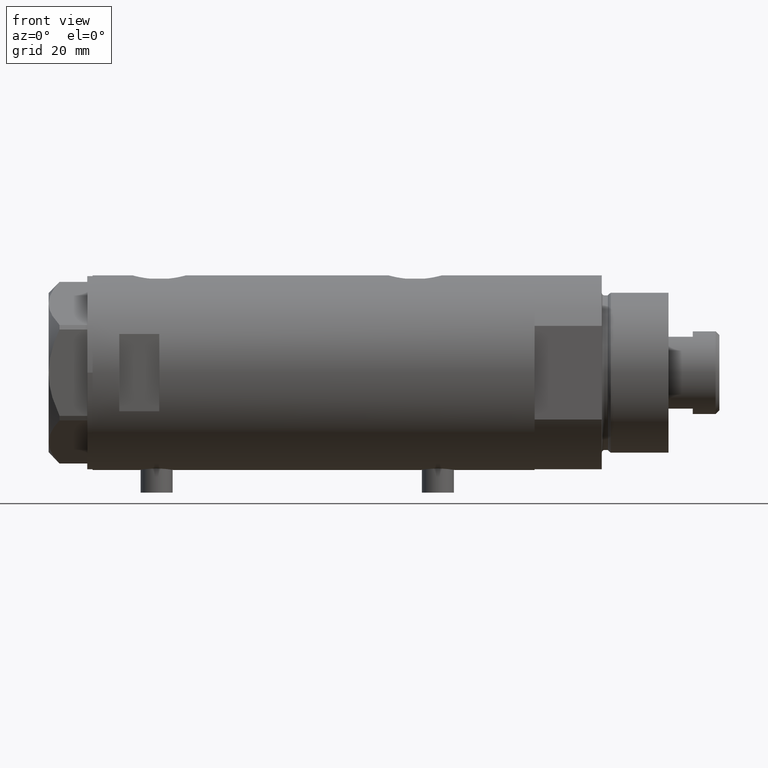
[diagram: clean part render]
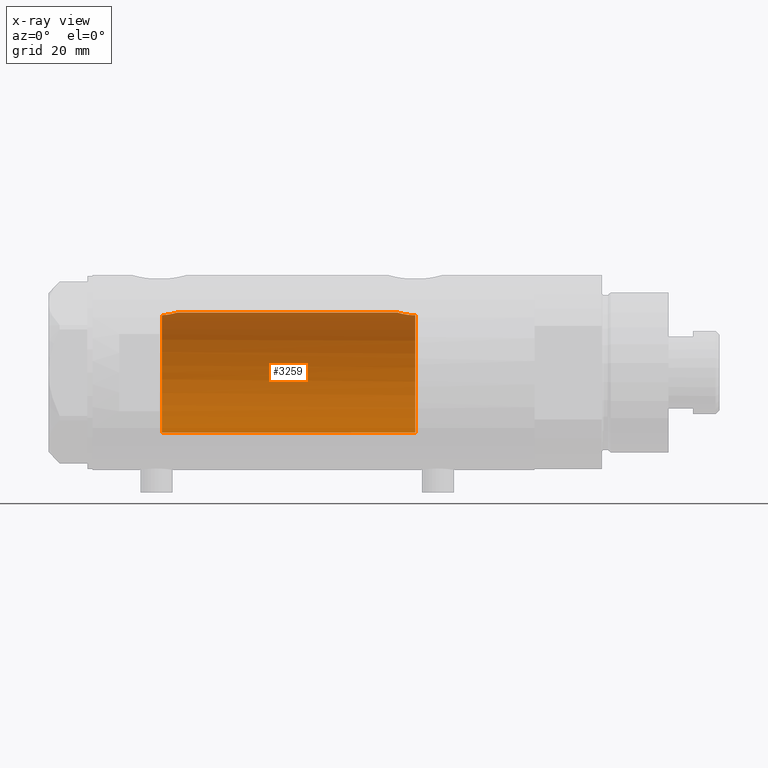
[diagram: x-ray — body ghosted, one internal face saturated and labeled with its STEP entity id]
A machine part, front view, then the same camera in x-ray: the body is ghosted and one INTERNAL B-rep face — a face not visible from any outside direction — is saturated and labeled: STEP entity #3259.
In plain terms, the highlighted cylindrical surface (partial cylindrical patch) has radius 22.5 mm, axis along (1, 0, -0).
Its self-contained STEP definition (entity closure, byte-faithful):
#7 = CARTESIAN_POINT ( 'NONE',  ( -22.49880827379606174, 0.2667964930359407738, 56.41065720946402706 ) ) ;
#17 = CARTESIAN_POINT ( 'NONE',  ( 22.50000000000000355, 8.058593785575293352E-16, -31.51999999999999957 ) ) ;
#38 = DIRECTION ( 'NONE',  ( 0.000000000000000000, 0.000000000000000000, -1.000000000000000000 ) ) ;
#94 = CYLINDRICAL_SURFACE ( 'NONE', #1262, 22.50000000000000355 ) ;
#227 = CARTESIAN_POINT ( 'NONE',  ( 21.97198143592078878, 4.852313884858198811, 53.43898489903312310 ) ) ;
#263 = CARTESIAN_POINT ( 'NONE',  ( 0.000000000000000000, 0.000000000000000000, -38.09999999999999432 ) ) ;
#264 = CARTESIAN_POINT ( 'NONE',  ( 22.50000000000000355, 0.000000000000000000, 51.32000000000000028 ) ) ;
#294 = CARTESIAN_POINT ( 'NONE',  ( -22.47624011997706361, 1.040549726802382002, 56.62289928738235290 ) ) ;
#328 = AXIS2_PLACEMENT_3D ( 'NONE', #496, #952, #4535 ) ;
#329 = VECTOR ( 'NONE', #2934, 1000.000000000000000 ) ;
#341 = CARTESIAN_POINT ( 'NONE',  ( -22.44994432064364887, 1.500000000000010658, 56.90000000000000568 ) ) ;
#374 = CARTESIAN_POINT ( 'NONE',  ( 21.76592257976932032, 5.705656113855375189, -34.79484284637812408 ) ) ;
#496 = CARTESIAN_POINT ( 'NONE',  ( 0.000000000000000000, 0.000000000000000000, 56.90000000000000568 ) ) ;
#698 = EDGE_CURVE ( 'NONE', #1799, #3244, #2506, .T. ) ;
#710 = EDGE_CURVE ( 'NONE', #1770, #3337, #2637, .T. ) ;
#763 = CARTESIAN_POINT ( 'NONE',  ( -22.50000000000000711, 0.1337051520153808293, 56.39999999999998437 ) ) ;
#793 = CARTESIAN_POINT ( 'NONE',  ( 22.50000000000000711, 0.4308769323960432440, -31.52000000000001378 ) ) ;
#804 = ORIENTED_EDGE ( 'NONE', *, *, #1798, .F. ) ;
#821 = CARTESIAN_POINT ( 'NONE',  ( 22.31307373663816662, 2.921646833104065255, -32.18858613169776817 ) ) ;
#840 = CARTESIAN_POINT ( 'NONE',  ( 21.58039466125149630, 6.367443256290042264, -36.38625661091905528 ) ) ;
#851 = VERTEX_POINT ( 'NONE', #4075 ) ;
#861 = VECTOR ( 'NONE', #1543, 1000.000000000000000 ) ;
#952 = DIRECTION ( 'NONE',  ( 0.000000000000000000, 0.000000000000000000, 1.000000000000000000 ) ) ;
#1060 = ORIENTED_EDGE ( 'NONE', *, *, #3646, .F. ) ;
#1069 = CARTESIAN_POINT ( 'NONE',  ( 22.45973433770731020, 1.359115216171840279, 51.45894713662338660 ) ) ;
#1154 = EDGE_CURVE ( 'NONE', #851, #2071, #2160, .T. ) ;
#1214 = CARTESIAN_POINT ( 'NONE',  ( 21.70300828301578733, 5.938634204148080187, 55.04008341356918521 ) ) ;
#1262 = AXIS2_PLACEMENT_3D ( 'NONE', #1600, #2639, #3065 ) ;
#1316 = EDGE_CURVE ( 'NONE', #851, #1799, #1810, .T. ) ;
#1330 = CARTESIAN_POINT ( 'NONE',  ( 22.34487948028763071, 2.662928462767973237, 51.87031008565885060 ) ) ;
#1425 = CARTESIAN_POINT ( 'NONE',  ( 22.44738562510071489, 1.549445000368393277, 51.50203276325539292 ) ) ;
#1508 = CARTESIAN_POINT ( 'NONE',  ( -22.46399894542833309, 1.277836078927884422, 56.74707957770323219 ) ) ;
#1522 = CARTESIAN_POINT ( 'NONE',  ( 22.14109776314135658, 4.018961829707383693, -32.87237162697964266 ) ) ;
#1542 = CARTESIAN_POINT ( 'NONE',  ( 21.51969523957628283, 6.569111213712935715, -37.66380209493692632 ) ) ;
#1543 = DIRECTION ( 'NONE',  ( -0.000000000000000000, -0.000000000000000000, -1.000000000000000000 ) ) ;
#1596 = CARTESIAN_POINT ( 'NONE',  ( 22.07793805162484446, 4.348669293362732446, -33.14321183416397076 ) ) ;
#1600 = CARTESIAN_POINT ( 'NONE',  ( 0.000000000000000000, 0.000000000000000000, 82.90000000000000568 ) ) ;
#1648 = CARTESIAN_POINT ( 'NONE',  ( 21.53958216864941733, 6.503568251352486840, 56.90000000000000568 ) ) ;
#1720 = CARTESIAN_POINT ( 'NONE',  ( 22.14421896774458887, 3.996618394220599946, 52.65850411031065192 ) ) ;
#1770 = VERTEX_POINT ( 'NONE', #264 ) ;
#1798 = EDGE_CURVE ( 'NONE', #4307, #1770, #1973, .T. ) ;
#1799 = VERTEX_POINT ( 'NONE', #4014 ) ;
#1810 = LINE ( 'NONE', #3296, #329 ) ;
#1869 = CARTESIAN_POINT ( 'NONE',  ( 21.51635656889892800, 6.580000000000002736, -38.10000000000000142 ) ) ;
#1870 = DIRECTION ( 'NONE',  ( -1.000000000000000000, 0.000000000000000000, 0.000000000000000000 ) ) ;
#1881 = CARTESIAN_POINT ( 'NONE',  ( -22.45709582300229101, 1.392966113493045333, 56.81972458511977919 ) ) ;
#1901 = CIRCLE ( 'NONE', #328, 22.50000000000000355 ) ;
#1904 = FACE_OUTER_BOUND ( 'NONE', #4304, .T. ) ;
#1922 = CARTESIAN_POINT ( 'NONE',  ( 21.54248662244912893, 6.494090541481658541, -37.01861175082140676 ) ) ;
#1972 = CARTESIAN_POINT ( 'NONE',  ( 21.58771824211648038, 6.342145538420561834, 56.13591924784430631 ) ) ;
#1973 = B_SPLINE_CURVE_WITH_KNOTS ( 'NONE', 3,
 ( #1648, #2781, #4589, #1972, #3774, #3069, #1214, #3792, #3447, #227, #4314, #1720, #4667, #3275, #1330, #3537, #2824, #1425, #1069, #2505, #3969, #2540 ),
 .UNSPECIFIED., .F., .F.,
 ( 4, 2, 2, 2, 2, 2, 2, 2, 2, 2, 4 ),
 ( 0.03202894702871426219, 0.03261250414633486139, 0.03319606126395546059, 0.03436317549919667980, 0.03553028973443790595, 0.03669740396967912516, 0.03786451820492034437, 0.03903163244016157052, 0.03961518955778217665, 0.04019874667540278973, 0.04136586091064400894 ),
 .UNSPECIFIED. ) ;
#2018 = B_SPLINE_CURVE_WITH_KNOTS ( 'NONE', 3,
 ( #17, #793, #2993, #4779, #4145, #821, #3747, #1522, #1596, #2308, #2636, #3085, #3406, #374, #2703, #3061, #840, #1922, #4518, #1542, #3769, #1869 ),
 .UNSPECIFIED., .F., .F.,
 ( 4, 2, 2, 2, 2, 2, 2, 2, 2, 2, 4 ),
 ( 0.02068572879290663316, 0.02197833177876012262, 0.02327093476461361554, 0.02456353775046710500, 0.02585614073632059445, 0.02650244222924734785, 0.02714874372217410126, 0.02844134670802762888, 0.02973394969388114956, 0.03038025118680791337, 0.03102655267973467718 ),
 .UNSPECIFIED. ) ;
#2071 = VERTEX_POINT ( 'NONE', #2096 ) ;
#2096 = CARTESIAN_POINT ( 'NONE',  ( -22.44994432064364887, 1.500000000000010658, 56.90000000000000568 ) ) ;
#2160 = B_SPLINE_CURVE_WITH_KNOTS ( 'NONE', 3,
 ( #2595, #763, #7, #4020, #4048, #3625, #294, #1508, #1881, #341 ),
 .UNSPECIFIED., .F., .F.,
 ( 4, 2, 2, 2, 4 ),
 ( 0.007822175643245121018, 0.008222643399515484897, 0.008623111155785847040, 0.009023578912056209184, 0.009424046668326573062 ),
 .UNSPECIFIED. ) ;
#2195 = ORIENTED_EDGE ( 'NONE', *, *, #3776, .T. ) ;
#2308 = CARTESIAN_POINT ( 'NONE',  ( 21.98170506496023435, 4.804030677015544981, -33.59847163284562299 ) ) ;
#2341 = AXIS2_PLACEMENT_3D ( 'NONE', #263, #38, #1870 ) ;
#2505 = CARTESIAN_POINT ( 'NONE',  ( 22.48961798642638499, 0.7839168256130851775, 51.35525408827136573 ) ) ;
#2506 = CIRCLE ( 'NONE', #2341, 22.50000000000000355 ) ;
#2540 = CARTESIAN_POINT ( 'NONE',  ( 22.50000000000000355, 0.000000000000000000, 51.32000000000000028 ) ) ;
#2595 = CARTESIAN_POINT ( 'NONE',  ( -22.50000000000000355, 3.061617244220330846E-16, 56.39999999999999858 ) ) ;
#2636 = CARTESIAN_POINT ( 'NONE',  ( 21.94924653817634663, 4.949760619110008975, -33.75922104935666113 ) ) ;
#2637 = LINE ( 'NONE', #4101, #861 ) ;
#2639 = DIRECTION ( 'NONE',  ( -0.000000000000000000, -0.000000000000000000, -1.000000000000000000 ) ) ;
#2703 = CARTESIAN_POINT ( 'NONE',  ( 21.71097692913352617, 5.908765693315405798, -35.17224774632267525 ) ) ;
#2781 = CARTESIAN_POINT ( 'NONE',  ( 21.54850992350584349, 6.473999851071386757, 56.70769989068857342 ) ) ;
#2824 = CARTESIAN_POINT ( 'NONE',  ( 22.41810768969941847, 1.927264596308556399, 51.60552498238021002 ) ) ;
#2934 = DIRECTION ( 'NONE',  ( -0.000000000000000000, -0.000000000000000000, -1.000000000000000000 ) ) ;
#2993 = CARTESIAN_POINT ( 'NONE',  ( 22.48752745446833501, 0.8626660575027224054, -31.56226479722901956 ) ) ;
#3061 = CARTESIAN_POINT ( 'NONE',  ( 21.61738790272778843, 6.242481197317898634, -35.97475324290417831 ) ) ;
#3065 = DIRECTION ( 'NONE',  ( -1.000000000000000000, 0.000000000000000000, 0.000000000000000000 ) ) ;
#3069 = CARTESIAN_POINT ( 'NONE',  ( 21.65875036540690601, 6.096384986856001831, 55.39350157007414310 ) ) ;
#3085 = CARTESIAN_POINT ( 'NONE',  ( 21.88602906110443058, 5.222191658358659616, -34.09110908501991588 ) ) ;
#3244 = VERTEX_POINT ( 'NONE', #4437 ) ;
#3259 = ADVANCED_FACE ( 'NONE', ( #1904 ), #94, .F. ) ;
#3275 = CARTESIAN_POINT ( 'NONE',  ( 22.30007684883240060, 3.011608117356138425, 52.03690468166832517 ) ) ;
#3296 = CARTESIAN_POINT ( 'NONE',  ( -22.50000000000000355, 0.000000000000000000, 82.90000000000000568 ) ) ;
#3310 = CARTESIAN_POINT ( 'NONE',  ( 21.53958216864941733, 6.503568251352486840, 56.90000000000000568 ) ) ;
#3337 = VERTEX_POINT ( 'NONE', #3922 ) ;
#3381 = ORIENTED_EDGE ( 'NONE', *, *, #1154, .F. ) ;
#3406 = CARTESIAN_POINT ( 'NONE',  ( 21.85514244747245272, 5.349553529053609147, -34.26278474480277225 ) ) ;
#3447 = CARTESIAN_POINT ( 'NONE',  ( 21.85834467356397681, 5.340944334976049923, 54.03736885285049851 ) ) ;
#3537 = CARTESIAN_POINT ( 'NONE',  ( 22.40112435233285026, 2.115025885874699973, 51.66613662186026090 ) ) ;
#3625 = CARTESIAN_POINT ( 'NONE',  ( -22.48163274036980397, 0.9177758873189288957, 56.57071222075915529 ) ) ;
#3646 = EDGE_CURVE ( 'NONE', #3337, #3244, #2018, .T. ) ;
#3747 = CARTESIAN_POINT ( 'NONE',  ( 22.25860915731085754, 3.306748059303223464, -32.39512753277105617 ) ) ;
#3769 = CARTESIAN_POINT ( 'NONE',  ( 21.51635656889893156, 6.580000000000002736, -37.88312317022887754 ) ) ;
#3774 = CARTESIAN_POINT ( 'NONE',  ( 21.60406082673097927, 6.286405977953741342, 55.94666670735803393 ) ) ;
#3776 = EDGE_CURVE ( 'NONE', #4307, #2071, #1901, .T. ) ;
#3792 = CARTESIAN_POINT ( 'NONE',  ( 21.80257506594836059, 5.561983929949493088, 54.36293428743496747 ) ) ;
#3922 = CARTESIAN_POINT ( 'NONE',  ( 22.50000000000000355, 8.058593785575293352E-16, -31.51999999999999957 ) ) ;
#3969 = CARTESIAN_POINT ( 'NONE',  ( 22.50000000000000355, 0.3947970979781463829, 51.31999999999999318 ) ) ;
#4014 = CARTESIAN_POINT ( 'NONE',  ( -22.50000000000000355, 0.000000000000000000, -38.09999999999999432 ) ) ;
#4020 = CARTESIAN_POINT ( 'NONE',  ( -22.49410607591505240, 0.5317386154976333490, 56.45352050033555003 ) ) ;
#4048 = CARTESIAN_POINT ( 'NONE',  ( -22.49055927180484105, 0.6639780822022154361, 56.48607637978749807 ) ) ;
#4075 = CARTESIAN_POINT ( 'NONE',  ( -22.50000000000000355, 3.061617244220330846E-16, 56.39999999999999858 ) ) ;
#4101 = CARTESIAN_POINT ( 'NONE',  ( 22.50000000000000355, 2.755455298081545172E-15, 82.90000000000000568 ) ) ;
#4145 = CARTESIAN_POINT ( 'NONE',  ( 22.40265168709897736, 2.128491761919761416, -31.85897789146818582 ) ) ;
#4196 = ORIENTED_EDGE ( 'NONE', *, *, #698, .T. ) ;
#4231 = ORIENTED_EDGE ( 'NONE', *, *, #710, .F. ) ;
#4304 = EDGE_LOOP ( 'NONE', ( #4231, #804, #2195, #3381, #4327, #4196, #1060 ) ) ;
#4307 = VERTEX_POINT ( 'NONE', #3310 ) ;
#4314 = CARTESIAN_POINT ( 'NONE',  ( 22.03020271031499888, 4.583618747547679284, 53.16326305060303525 ) ) ;
#4327 = ORIENTED_EDGE ( 'NONE', *, *, #1316, .T. ) ;
#4437 = CARTESIAN_POINT ( 'NONE',  ( 21.51635656889892800, 6.580000000000002736, -38.10000000000000142 ) ) ;
#4518 = CARTESIAN_POINT ( 'NONE',  ( 21.53277870401796434, 6.526097350343573744, -37.23193080670432664 ) ) ;
#4535 = DIRECTION ( 'NONE',  ( 1.000000000000000000, 0.000000000000000000, 0.000000000000000000 ) ) ;
#4589 = CARTESIAN_POINT ( 'NONE',  ( 21.55996057785741726, 6.435875139617805551, 56.51641692772588499 ) ) ;
#4667 = CARTESIAN_POINT ( 'NONE',  ( 22.20005338163447206, 3.677069589895788582, 52.42964083487822791 ) ) ;
#4779 = CARTESIAN_POINT ( 'NONE',  ( 22.43846943857365872, 1.717024460055897039, -31.73305400432138867 ) ) ;